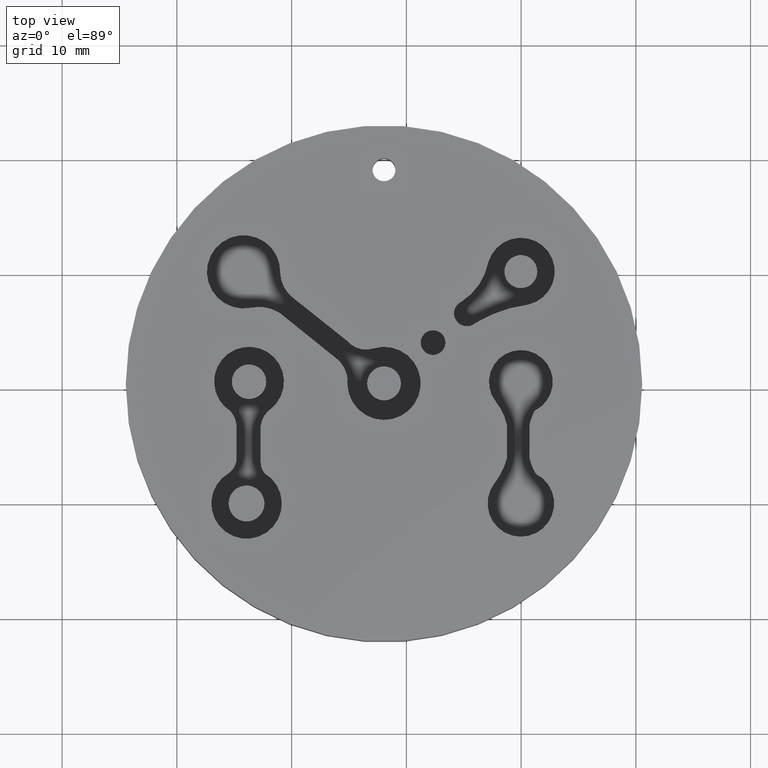
[diagram: clean part render]
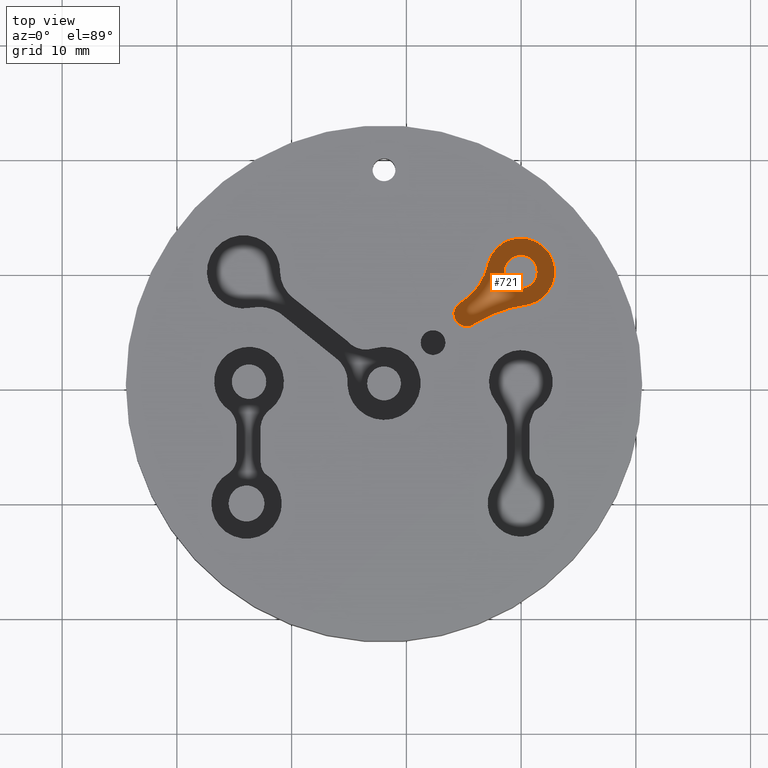
[diagram: same view with one face highlighted and labeled with its STEP entity id]
A machine part, top view. The second image highlights one B-rep face of the part: STEP entity #721.
In plain terms, the highlighted planar face has unit normal (0, 0, 1).
Its self-contained STEP definition (entity closure, byte-faithful):
#15=FACE_BOUND('',#99,.T.);
#27=PLANE('',#797);
#52=FACE_OUTER_BOUND('',#98,.T.);
#98=EDGE_LOOP('',(#506,#507,#508,#509));
#99=EDGE_LOOP('',(#510));
#246=CIRCLE('',#783,1.43526383437021);
#249=CIRCLE('',#787,11.7069667488273);
#251=CIRCLE('',#790,2.94888572910964);
#253=CIRCLE('',#793,5.27787053740473);
#255=CIRCLE('',#796,1.12692869761494);
#304=VERTEX_POINT('',#1154);
#308=VERTEX_POINT('',#1163);
#309=VERTEX_POINT('',#1165);
#311=VERTEX_POINT('',#1171);
#313=VERTEX_POINT('',#1177);
#377=EDGE_CURVE('',#304,#304,#246,.T.);
#382=EDGE_CURVE('',#308,#309,#249,.T.);
#386=EDGE_CURVE('',#311,#308,#251,.T.);
#389=EDGE_CURVE('',#313,#311,#253,.T.);
#391=EDGE_CURVE('',#309,#313,#255,.T.);
#506=ORIENTED_EDGE('',*,*,#391,.F.);
#507=ORIENTED_EDGE('',*,*,#382,.F.);
#508=ORIENTED_EDGE('',*,*,#386,.F.);
#509=ORIENTED_EDGE('',*,*,#389,.F.);
#510=ORIENTED_EDGE('',*,*,#377,.F.);
#721=ADVANCED_FACE('',(#52,#15),#27,.T.);
#783=AXIS2_PLACEMENT_3D('',#1155,#903,#904);
#787=AXIS2_PLACEMENT_3D('',#1166,#913,#914);
#790=AXIS2_PLACEMENT_3D('',#1173,#921,#922);
#793=AXIS2_PLACEMENT_3D('',#1179,#928,#929);
#796=AXIS2_PLACEMENT_3D('',#1182,#934,#935);
#797=AXIS2_PLACEMENT_3D('',#1183,#936,#937);
#903=DIRECTION('center_axis',(0.,0.,1.));
#904=DIRECTION('ref_axis',(1.,0.,0.));
#913=DIRECTION('center_axis',(0.,0.,1.));
#914=DIRECTION('ref_axis',(-0.124510143279333,0.992218334954843,0.));
#921=DIRECTION('center_axis',(0.,0.,-1.));
#922=DIRECTION('ref_axis',(1.,0.,0.));
#928=DIRECTION('center_axis',(0.,0.,1.));
#929=DIRECTION('ref_axis',(0.539234003567845,-0.842155976880883,0.));
#934=DIRECTION('center_axis',(0.,0.,-1.));
#935=DIRECTION('ref_axis',(1.,0.,0.));
#936=DIRECTION('center_axis',(0.,0.,1.));
#937=DIRECTION('ref_axis',(1.,0.,0.));
#1154=CARTESIAN_POINT('',(38.5380866436863,0.220104051010259,-1.5));
#1155=CARTESIAN_POINT('Origin',(39.9733504780566,0.220104051010259,-1.5));
#1163=CARTESIAN_POINT('',(40.6371599248641,-2.65309696208917,-1.5));
#1165=CARTESIAN_POINT('',(36.0395454949488,-4.24963213356057,-1.5));
#1166=CARTESIAN_POINT('Origin',(42.094796032127,-14.2689640169823,-1.5));
#1171=CARTESIAN_POINT('',(37.1467516286958,1.06050037902391,-1.5));
#1173=CARTESIAN_POINT('Origin',(39.9733504780566,0.220104051010259,-1.5));
#1177=CARTESIAN_POINT('',(34.8081830761113,-2.39631663560971,-1.5));
#1179=CARTESIAN_POINT('Origin',(31.9621758159138,2.0484735826692,-1.5));
#1182=CARTESIAN_POINT('Origin',(35.2743787223362,-3.42229417383804,-1.5));
#1183=CARTESIAN_POINT('Origin',(38.5348431159437,-0.690116545666539,-1.5));